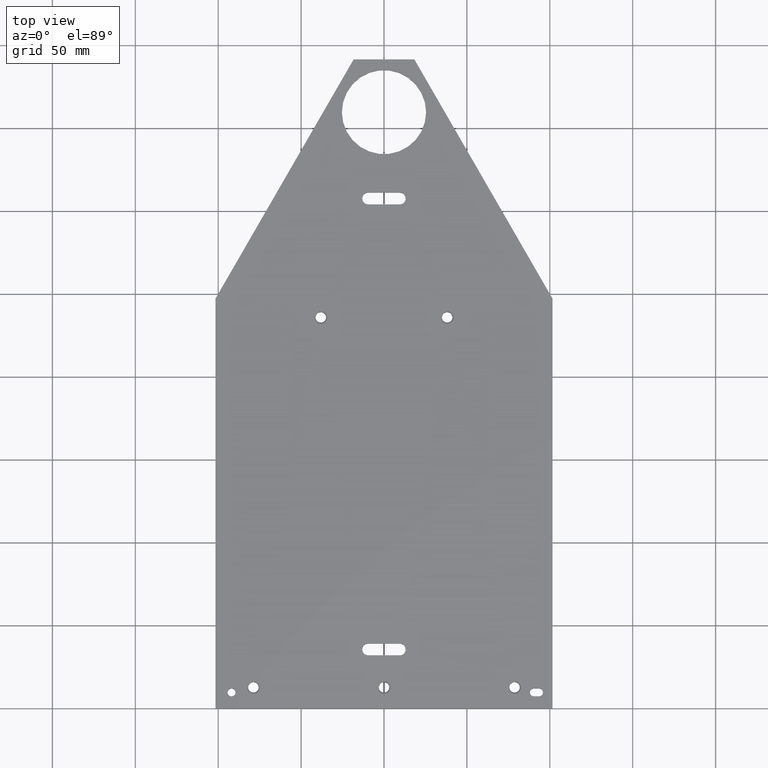
[diagram: clean part render]
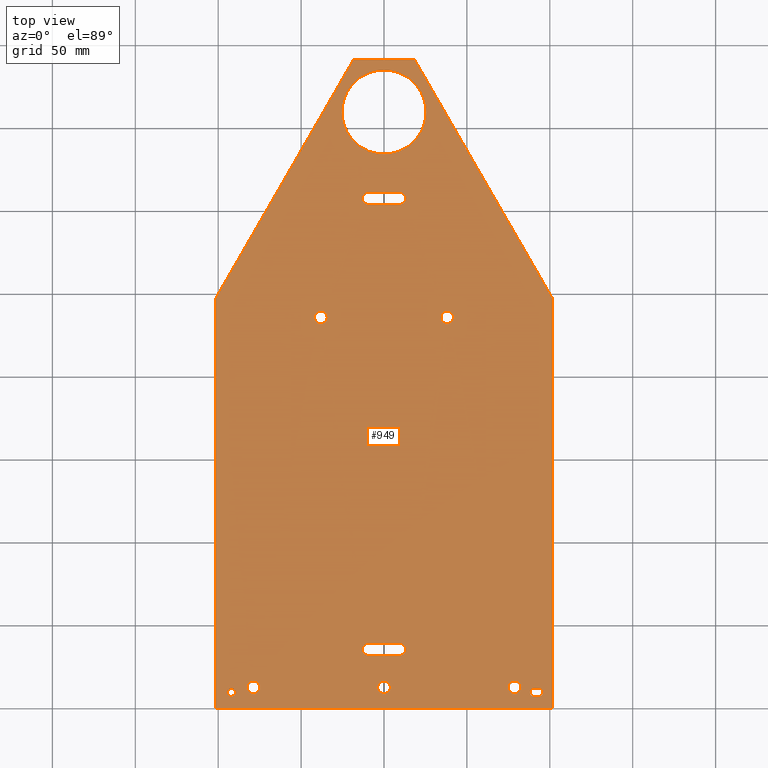
[diagram: same view with one face highlighted and labeled with its STEP entity id]
A machine part, top view. The second image highlights one B-rep face of the part: STEP entity #949.
In plain terms, the highlighted planar face has unit normal (0, 0, -1).
Its self-contained STEP definition (entity closure, byte-faithful):
#94 = CIRCLE ( 'NONE', #1489, 0.1499999999999997700 ) ;
#107 = CIRCLE ( 'NONE', #1493, 0.09399999999999959800 ) ;
#113 = CIRCLE ( 'NONE', #1495, 0.09400000000000013900 ) ;
#141 = CIRCLE ( 'NONE', #1507, 0.9999999999999990000 ) ;
#147 = CARTESIAN_POINT ( 'NONE',  ( -0.7216878364870401600, 15.41150000000001300, 0.1875000000000000300 ) ) ;
#148 = DIRECTION ( 'NONE',  ( 1.000000000000000000, 0.0000000000000000000, 0.0000000000000000000 ) ) ;
#149 = CARTESIAN_POINT ( 'NONE',  ( -1.499999999999999600, 9.286500000000010900, 0.1875000000000000800 ) ) ;
#150 = DIRECTION ( 'NONE',  ( -0.0000000000000000000, -0.0000000000000000000, 1.000000000000000000 ) ) ;
#151 = CARTESIAN_POINT ( 'NONE',  ( -0.7216878364870401600, 15.41150000000001300, 0.1875000000000000300 ) ) ;
#152 = DIRECTION ( 'NONE',  ( -0.4999999999999938400, 0.8660254037844422600, -0.0000000000000000000 ) ) ;
#153 = DIRECTION ( 'NONE',  ( -0.0000000000000000000, -0.0000000000000000000, 1.000000000000000000 ) ) ;
#154 = CARTESIAN_POINT ( 'NONE',  ( 0.7216878364870408200, 15.41150000000001300, 0.1875000000000000300 ) ) ;
#155 = DIRECTION ( 'NONE',  ( -0.4999999999999935100, -0.8660254037844422600, 0.0000000000000000000 ) ) ;
#156 = DIRECTION ( 'NONE',  ( -1.000000000000000000, -0.0000000000000000000, -0.0000000000000000000 ) ) ;
#157 = CARTESIAN_POINT ( 'NONE',  ( -4.000000000000003600, 0.0000000000000000000, 0.1875000000000000300 ) ) ;
#158 = CARTESIAN_POINT ( 'NONE',  ( 0.0000000000000000000, 14.16150000000001100, 0.1875000000000000300 ) ) ;
#159 = DIRECTION ( 'NONE',  ( 0.0000000000000000000, 0.0000000000000000000, 1.000000000000000000 ) ) ;
#160 = CARTESIAN_POINT ( 'NONE',  ( 3.560000000000000100, 0.4739999999999993700, 0.1875000000000000300 ) ) ;
#161 = DIRECTION ( 'NONE',  ( 1.000000000000000000, 0.0000000000000000000, 0.0000000000000000000 ) ) ;
#162 = DIRECTION ( 'NONE',  ( 1.000000000000000000, 1.365923996832129900E-016, 0.0000000000000000000 ) ) ;
#163 = DIRECTION ( 'NONE',  ( -2.245362950125366000E-016, 1.000000000000000000, -0.0000000000000000000 ) ) ;
#164 = CARTESIAN_POINT ( 'NONE',  ( 4.000000000000005300, 9.733296769724415000, 0.1875000000000000300 ) ) ;
#165 = CARTESIAN_POINT ( 'NONE',  ( -0.3750000000000023300, 12.11000000000006700, 0.1875000000000000300 ) ) ;
#166 = DIRECTION ( 'NONE',  ( 0.0000000000000000000, 0.0000000000000000000, 1.000000000000000000 ) ) ;
#167 = DIRECTION ( 'NONE',  ( 1.000000000000000000, 0.0000000000000000000, 0.0000000000000000000 ) ) ;
#168 = CARTESIAN_POINT ( 'NONE',  ( 0.3749999999999977200, 12.11000000000006700, 0.1875000000000000300 ) ) ;
#169 = CARTESIAN_POINT ( 'NONE',  ( 0.3750000000000036600, 1.540500000000067000, 0.1875000000000000300 ) ) ;
#170 = DIRECTION ( 'NONE',  ( 1.000000000000000000, 3.642463991552351500E-016, -0.0000000000000000000 ) ) ;
#171 = CARTESIAN_POINT ( 'NONE',  ( 0.3750000000000037700, 1.400000000000067000, 0.1875000000000000300 ) ) ;
#172 = CARTESIAN_POINT ( 'NONE',  ( 0.3750000000000036600, 1.259500000000067300, 0.1875000000000000300 ) ) ;
#173 = DIRECTION ( 'NONE',  ( 0.0000000000000000000, 0.0000000000000000000, 1.000000000000000000 ) ) ;
#174 = DIRECTION ( 'NONE',  ( -1.000000000000000000, 0.0000000000000000000, 0.0000000000000000000 ) ) ;
#175 = CARTESIAN_POINT ( 'NONE',  ( -4.000000000000003600, 0.0000000000000000000, 0.1875000000000000300 ) ) ;
#176 = CARTESIAN_POINT ( 'NONE',  ( -0.3749999999999962800, 1.400000000000067000, 0.1875000000000000300 ) ) ;
#177 = DIRECTION ( 'NONE',  ( 5.613407375313416200E-017, -1.000000000000000000, -0.0000000000000000000 ) ) ;
#178 = DIRECTION ( 'NONE',  ( 0.0000000000000000000, 0.0000000000000000000, 1.000000000000000000 ) ) ;
#179 = DIRECTION ( 'NONE',  ( -1.000000000000000000, 0.0000000000000000000, 0.0000000000000000000 ) ) ;
#180 = DIRECTION ( 'NONE',  ( -1.000000000000000000, 0.0000000000000000000, 0.0000000000000000000 ) ) ;
#181 = CARTESIAN_POINT ( 'NONE',  ( 0.3749999999999980600, 12.25050000000006600, 0.1875000000000000300 ) ) ;
#182 = DIRECTION ( 'NONE',  ( -0.0000000000000000000, -0.0000000000000000000, 1.000000000000000000 ) ) ;
#183 = CARTESIAN_POINT ( 'NONE',  ( 0.3749999999999980600, 11.96950000000006800, 0.1875000000000000300 ) ) ;
#184 = CARTESIAN_POINT ( 'NONE',  ( 1.500000000000000900, 9.286500000000010900, 0.1875000000000000800 ) ) ;
#185 = DIRECTION ( 'NONE',  ( 1.000000000000000000, 0.0000000000000000000, 0.0000000000000000000 ) ) ;
#186 = DIRECTION ( 'NONE',  ( 0.0000000000000000000, 0.0000000000000000000, 1.000000000000000000 ) ) ;
#187 = DIRECTION ( 'NONE',  ( 1.000000000000000000, 2.913971193241881200E-015, -0.0000000000000000000 ) ) ;
#188 = DIRECTION ( 'NONE',  ( -1.000000000000000000, 0.0000000000000000000, 0.0000000000000000000 ) ) ;
#189 = DIRECTION ( 'NONE',  ( 1.000000000000000000, 0.0000000000000000000, 0.0000000000000000000 ) ) ;
#191 = DIRECTION ( 'NONE',  ( -0.0000000000000000000, -0.0000000000000000000, 1.000000000000000000 ) ) ;
#193 = DIRECTION ( 'NONE',  ( 1.000000000000000000, 0.0000000000000000000, 0.0000000000000000000 ) ) ;
#201 = CARTESIAN_POINT ( 'NONE',  ( -3.620000000000005400, 0.3799999999999997800, 0.1875000000000000300 ) ) ;
#209 = CARTESIAN_POINT ( 'NONE',  ( -3.100000000000000100, 0.4999999999999930100, 0.1875000000000000800 ) ) ;
#223 = CARTESIAN_POINT ( 'NONE',  ( -3.714000000000005700, 0.3799999999999997800, 0.1875000000000000300 ) ) ;
#224 = CARTESIAN_POINT ( 'NONE',  ( 0.5155000000000037300, 1.400000000000067000, 0.1875000000000000300 ) ) ;
#229 = CARTESIAN_POINT ( 'NONE',  ( 3.680000000000002400, 0.2860000000000002000, 0.1875000000000000300 ) ) ;
#230 = CARTESIAN_POINT ( 'NONE',  ( 4.000000000000005300, 9.733296769724415000, 0.1875000000000000300 ) ) ;
#233 = CARTESIAN_POINT ( 'NONE',  ( -4.000000000000003600, 0.0000000000000000000, 0.1875000000000000300 ) ) ;
#240 = CARTESIAN_POINT ( 'NONE',  ( -0.3749999999999963900, 1.259500000000066900, 0.1875000000000000300 ) ) ;
#246 = CARTESIAN_POINT ( 'NONE',  ( -1.349999999999999400, 9.286500000000010900, 0.1875000000000000800 ) ) ;
#247 = CARTESIAN_POINT ( 'NONE',  ( 1.650000000000001000, 9.286500000000010900, 0.1875000000000000800 ) ) ;
#252 = CARTESIAN_POINT ( 'NONE',  ( -3.250000000000000000, 0.4999999999999930100, 0.1875000000000000800 ) ) ;
#256 = CARTESIAN_POINT ( 'NONE',  ( -2.950000000000000600, 0.4999999999999930100, 0.1875000000000000800 ) ) ;
#261 = CARTESIAN_POINT ( 'NONE',  ( 0.5154999999999969600, 12.11000000000006700, 0.1875000000000000300 ) ) ;
#262 = CARTESIAN_POINT ( 'NONE',  ( 3.774000000000001800, 0.3799999999999997800, 0.1875000000000000300 ) ) ;
#264 = DIRECTION ( 'NONE',  ( 1.000000000000000000, 0.0000000000000000000, 0.0000000000000000000 ) ) ;
#266 = CARTESIAN_POINT ( 'NONE',  ( -3.526000000000005600, 0.3799999999999997800, 0.1875000000000000300 ) ) ;
#269 = CARTESIAN_POINT ( 'NONE',  ( 3.560000000000000100, 0.2860000000000002000, 0.1875000000000000300 ) ) ;
#271 = CARTESIAN_POINT ( 'NONE',  ( 3.680000000000002400, 0.4739999999999993700, 0.1875000000000000300 ) ) ;
#272 = CARTESIAN_POINT ( 'NONE',  ( -0.7216878364870401600, 15.41150000000001300, 0.1875000000000000300 ) ) ;
#274 = CARTESIAN_POINT ( 'NONE',  ( 0.9999999999999990000, 14.16150000000001100, 0.1875000000000000300 ) ) ;
#275 = CARTESIAN_POINT ( 'NONE',  ( 0.3749999999999980600, 11.96950000000006800, 0.1875000000000000300 ) ) ;
#276 = CARTESIAN_POINT ( 'NONE',  ( -0.3749999999999963900, 1.540500000000067000, 0.1875000000000000300 ) ) ;
#278 = CARTESIAN_POINT ( 'NONE',  ( 3.560000000000000100, 0.4739999999999993700, 0.1875000000000000300 ) ) ;
#279 = CARTESIAN_POINT ( 'NONE',  ( -0.3750000000000020000, 12.25050000000006600, 0.1875000000000000300 ) ) ;
#281 = CARTESIAN_POINT ( 'NONE',  ( 0.7216878364870408200, 15.41150000000001300, 0.1875000000000000300 ) ) ;
#285 = CARTESIAN_POINT ( 'NONE',  ( 4.000000000000008000, 1.092739197465705300E-015, 0.1875000000000000300 ) ) ;
#287 = CARTESIAN_POINT ( 'NONE',  ( -0.9999999999999990000, 14.16150000000001100, 0.1875000000000000300 ) ) ;
#289 = CARTESIAN_POINT ( 'NONE',  ( 0.3750000000000036600, 1.259500000000067300, 0.1875000000000000300 ) ) ;
#293 = CARTESIAN_POINT ( 'NONE',  ( 0.3749999999999980600, 12.25050000000006600, 0.1875000000000000300 ) ) ;
#294 = CARTESIAN_POINT ( 'NONE',  ( 0.3750000000000036600, 1.540500000000067000, 0.1875000000000000300 ) ) ;
#296 = CARTESIAN_POINT ( 'NONE',  ( -0.3750000000000020000, 11.96950000000006600, 0.1875000000000000300 ) ) ;
#298 = CARTESIAN_POINT ( 'NONE',  ( 1.350000000000001000, 9.286500000000010900, 0.1875000000000000800 ) ) ;
#302 = CARTESIAN_POINT ( 'NONE',  ( -1.649999999999999700, 9.286500000000010900, 0.1875000000000000800 ) ) ;
#304 = CARTESIAN_POINT ( 'NONE',  ( -4.000000000000003600, 9.733296769724413300, 0.1875000000000000300 ) ) ;
#329 = CARTESIAN_POINT ( 'NONE',  ( 0.3750000000000037700, 1.400000000000067000, 0.1875000000000000300 ) ) ;
#330 = DIRECTION ( 'NONE',  ( 0.0000000000000000000, 0.0000000000000000000, 1.000000000000000000 ) ) ;
#331 = DIRECTION ( 'NONE',  ( -1.000000000000000000, 0.0000000000000000000, 0.0000000000000000000 ) ) ;
#340 = CARTESIAN_POINT ( 'NONE',  ( -2.731847993664263200E-016, 0.4999999999999930100, 0.1875000000000000800 ) ) ;
#341 = DIRECTION ( 'NONE',  ( -0.0000000000000000000, -0.0000000000000000000, 1.000000000000000000 ) ) ;
#342 = DIRECTION ( 'NONE',  ( 1.000000000000000000, 0.0000000000000000000, 0.0000000000000000000 ) ) ;
#358 = CARTESIAN_POINT ( 'NONE',  ( 3.099999999999999600, 0.4999999999999930100, 0.1875000000000000800 ) ) ;
#359 = DIRECTION ( 'NONE',  ( -0.0000000000000000000, -0.0000000000000000000, 1.000000000000000000 ) ) ;
#360 = DIRECTION ( 'NONE',  ( 1.000000000000000000, 0.0000000000000000000, 0.0000000000000000000 ) ) ;
#398 = CIRCLE ( 'NONE', #1509, 0.1499999999999997700 ) ;
#399 = CIRCLE ( 'NONE', #1508, 0.1499999999999999700 ) ;
#400 = LINE ( 'NONE', #181, #404 ) ;
#401 = CIRCLE ( 'NONE', #1511, 0.1404999999999992400 ) ;
#402 = CIRCLE ( 'NONE', #1510, 0.1500000000000000500 ) ;
#403 = LINE ( 'NONE', #183, #407 ) ;
#404 = VECTOR ( 'NONE', #180, 39.37007874015748100 ) ;
#405 = CIRCLE ( 'NONE', #1513, 0.1404999999999999000 ) ;
#406 = CIRCLE ( 'NONE', #1512, 0.1405000000000003200 ) ;
#407 = VECTOR ( 'NONE', #187, 39.37007874015748100 ) ;
#408 = LINE ( 'NONE', #169, #410 ) ;
#409 = LINE ( 'NONE', #172, #413 ) ;
#410 = VECTOR ( 'NONE', #188, 39.37007874015748100 ) ;
#411 = CIRCLE ( 'NONE', #1514, 0.1405000000000000400 ) ;
#412 = CIRCLE ( 'NONE', #1515, 0.9999999999999990000 ) ;
#413 = VECTOR ( 'NONE', #170, 39.37007874015748100 ) ;
#414 = LINE ( 'NONE', #157, #419 ) ;
#415 = LINE ( 'NONE', #175, #417 ) ;
#416 = CIRCLE ( 'NONE', #1517, 0.09400000000000013900 ) ;
#417 = VECTOR ( 'NONE', #177, 39.37007874015748100 ) ;
#418 = LINE ( 'NONE', #164, #421 ) ;
#419 = VECTOR ( 'NONE', #162, 39.37007874015748100 ) ;
#420 = LINE ( 'NONE', #154, #423 ) ;
#421 = VECTOR ( 'NONE', #163, 39.37007874015748100 ) ;
#422 = LINE ( 'NONE', #147, #425 ) ;
#423 = VECTOR ( 'NONE', #152, 39.37007874015748100 ) ;
#424 = LINE ( 'NONE', #151, #427 ) ;
#425 = VECTOR ( 'NONE', #156, 39.37007874015748100 ) ;
#426 = CIRCLE ( 'NONE', #1516, 0.1500000000000000500 ) ;
#427 = VECTOR ( 'NONE', #155, 39.37007874015748900 ) ;
#428 = LINE ( 'NONE', #1393, #431 ) ;
#430 = CIRCLE ( 'NONE', #1518, 0.09399999999999959800 ) ;
#431 = VECTOR ( 'NONE', #1391, 39.37007874015748100 ) ;
#432 = LINE ( 'NONE', #160, #434 ) ;
#433 = CIRCLE ( 'NONE', #1519, 0.09399999999999959800 ) ;
#434 = VECTOR ( 'NONE', #1396, 39.37007874015748100 ) ;
#435 = CIRCLE ( 'NONE', #1520, 0.1499999999999997700 ) ;
#470 = CIRCLE ( 'NONE', #910, 0.1500000000000000500 ) ;
#486 = CIRCLE ( 'NONE', #1546, 0.1500000000000000500 ) ;
#492 = CIRCLE ( 'NONE', #1550, 0.1404999999999992400 ) ;
#503 = CIRCLE ( 'NONE', #1552, 0.1404999999999999000 ) ;
#515 = CIRCLE ( 'NONE', #1554, 0.1499999999999999700 ) ;
#527 = CIRCLE ( 'NONE', #1557, 0.1499999999999997700 ) ;
#537 = DIRECTION ( 'NONE',  ( -0.0000000000000000000, -0.0000000000000000000, 1.000000000000000000 ) ) ;
#539 = VERTEX_POINT ( 'NONE', #1624 ) ;
#540 = VERTEX_POINT ( 'NONE', #1618 ) ;
#549 = VERTEX_POINT ( 'NONE', #1617 ) ;
#550 = VERTEX_POINT ( 'NONE', #1630 ) ;
#557 = VERTEX_POINT ( 'NONE', #252 ) ;
#558 = VERTEX_POINT ( 'NONE', #256 ) ;
#565 = VERTEX_POINT ( 'NONE', #262 ) ;
#566 = VERTEX_POINT ( 'NONE', #271 ) ;
#569 = VERTEX_POINT ( 'NONE', #223 ) ;
#570 = VERTEX_POINT ( 'NONE', #266 ) ;
#572 = CARTESIAN_POINT ( 'NONE',  ( -3.620000000000005400, 0.3799999999999997800, 0.1875000000000000300 ) ) ;
#575 = VERTEX_POINT ( 'NONE', #302 ) ;
#577 = VERTEX_POINT ( 'NONE', #246 ) ;
#585 = VERTEX_POINT ( 'NONE', #298 ) ;
#586 = VERTEX_POINT ( 'NONE', #247 ) ;
#588 = VERTEX_POINT ( 'NONE', #269 ) ;
#591 = VERTEX_POINT ( 'NONE', #304 ) ;
#597 = VERTEX_POINT ( 'NONE', #261 ) ;
#598 = VERTEX_POINT ( 'NONE', #293 ) ;
#601 = VERTEX_POINT ( 'NONE', #224 ) ;
#602 = VERTEX_POINT ( 'NONE', #294 ) ;
#603 = VERTEX_POINT ( 'NONE', #279 ) ;
#604 = VERTEX_POINT ( 'NONE', #275 ) ;
#605 = VERTEX_POINT ( 'NONE', #287 ) ;
#606 = VERTEX_POINT ( 'NONE', #274 ) ;
#607 = VERTEX_POINT ( 'NONE', #276 ) ;
#608 = VERTEX_POINT ( 'NONE', #296 ) ;
#609 = VERTEX_POINT ( 'NONE', #289 ) ;
#611 = VERTEX_POINT ( 'NONE', #240 ) ;
#612 = VERTEX_POINT ( 'NONE', #233 ) ;
#614 = VERTEX_POINT ( 'NONE', #229 ) ;
#615 = VERTEX_POINT ( 'NONE', #285 ) ;
#616 = VERTEX_POINT ( 'NONE', #230 ) ;
#617 = VERTEX_POINT ( 'NONE', #281 ) ;
#618 = VERTEX_POINT ( 'NONE', #272 ) ;
#619 = VERTEX_POINT ( 'NONE', #278 ) ;
#649 = FACE_BOUND ( 'NONE', #995, .T. ) ;
#655 = FACE_BOUND ( 'NONE', #767, .T. ) ;
#662 = FACE_BOUND ( 'NONE', #1045, .T. ) ;
#664 = FACE_BOUND ( 'NONE', #1004, .T. ) ;
#666 = FACE_BOUND ( 'NONE', #771, .T. ) ;
#667 = FACE_BOUND ( 'NONE', #765, .T. ) ;
#668 = FACE_OUTER_BOUND ( 'NONE', #766, .T. ) ;
#669 = FACE_BOUND ( 'NONE', #764, .T. ) ;
#670 = FACE_BOUND ( 'NONE', #768, .T. ) ;
#671 = FACE_BOUND ( 'NONE', #1046, .T. ) ;
#672 = FACE_BOUND ( 'NONE', #1028, .T. ) ;
#758 = ORIENTED_EDGE ( 'NONE', *, *, #1284, .F. ) ;
#759 = ORIENTED_EDGE ( 'NONE', *, *, #1283, .F. ) ;
#764 = EDGE_LOOP ( 'NONE', ( #1465, #1471 ) ) ;
#765 = EDGE_LOOP ( 'NONE', ( #758, #1455 ) ) ;
#766 = EDGE_LOOP ( 'NONE', ( #1460, #1464, #1458, #1459, #1469, #1462 ) ) ;
#767 = EDGE_LOOP ( 'NONE', ( #921, #933 ) ) ;
#768 = EDGE_LOOP ( 'NONE', ( #1457, #1113 ) ) ;
#771 = EDGE_LOOP ( 'NONE', ( #919, #914 ) ) ;
#877 = AXIS2_PLACEMENT_3D ( 'NONE', #1315, #1333, #1317 ) ;
#910 = AXIS2_PLACEMENT_3D ( 'NONE', #1706, #1707, #1708 ) ;
#913 = ORIENTED_EDGE ( 'NONE', *, *, #1273, .F. ) ;
#914 = ORIENTED_EDGE ( 'NONE', *, *, #1812, .F. ) ;
#918 = ORIENTED_EDGE ( 'NONE', *, *, #1276, .F. ) ;
#919 = ORIENTED_EDGE ( 'NONE', *, *, #1274, .F. ) ;
#921 = ORIENTED_EDGE ( 'NONE', *, *, #1275, .F. ) ;
#922 = ORIENTED_EDGE ( 'NONE', *, *, #1282, .F. ) ;
#923 = ORIENTED_EDGE ( 'NONE', *, *, #1279, .F. ) ;
#926 = ORIENTED_EDGE ( 'NONE', *, *, #1804, .F. ) ;
#927 = ORIENTED_EDGE ( 'NONE', *, *, #1277, .F. ) ;
#929 = ORIENTED_EDGE ( 'NONE', *, *, #1278, .F. ) ;
#930 = ORIENTED_EDGE ( 'NONE', *, *, #1796, .F. ) ;
#933 = ORIENTED_EDGE ( 'NONE', *, *, #1786, .F. ) ;
#935 = ORIENTED_EDGE ( 'NONE', *, *, #1281, .F. ) ;
#949 = ADVANCED_FACE ( 'NONE', ( #662, #666, #655, #649, #664, #667, #668, #669, #670, #671, #672 ), #1334, .F. ) ;
#988 = CARTESIAN_POINT ( 'NONE',  ( 3.099999999999999600, 0.4999999999999930100, 0.1875000000000000800 ) ) ;
#995 = EDGE_LOOP ( 'NONE', ( #918, #930, #927, #929, #923 ) ) ;
#1004 = EDGE_LOOP ( 'NONE', ( #1200, #1174, #935, #922, #759 ) ) ;
#1028 = EDGE_LOOP ( 'NONE', ( #1095, #1096 ) ) ;
#1045 = EDGE_LOOP ( 'NONE', ( #913, #926 ) ) ;
#1046 = EDGE_LOOP ( 'NONE', ( #1102, #1103, #1101, #1097, #1106 ) ) ;
#1095 = ORIENTED_EDGE ( 'NONE', *, *, #1297, .F. ) ;
#1096 = ORIENTED_EDGE ( 'NONE', *, *, #1238, .F. ) ;
#1097 = ORIENTED_EDGE ( 'NONE', *, *, #1248, .F. ) ;
#1101 = ORIENTED_EDGE ( 'NONE', *, *, #1295, .F. ) ;
#1102 = ORIENTED_EDGE ( 'NONE', *, *, #1293, .F. ) ;
#1103 = ORIENTED_EDGE ( 'NONE', *, *, #1294, .F. ) ;
#1106 = ORIENTED_EDGE ( 'NONE', *, *, #1296, .F. ) ;
#1113 = ORIENTED_EDGE ( 'NONE', *, *, #1252, .F. ) ;
#1174 = ORIENTED_EDGE ( 'NONE', *, *, #1800, .F. ) ;
#1200 = ORIENTED_EDGE ( 'NONE', *, *, #1280, .F. ) ;
#1238 = EDGE_CURVE ( 'NONE', #557, #558, #94, .T. ) ;
#1248 = EDGE_CURVE ( 'NONE', #565, #566, #107, .T. ) ;
#1252 = EDGE_CURVE ( 'NONE', #569, #570, #113, .T. ) ;
#1271 = EDGE_CURVE ( 'NONE', #605, #606, #141, .T. ) ;
#1273 = EDGE_CURVE ( 'NONE', #539, #540, #399, .T. ) ;
#1274 = EDGE_CURVE ( 'NONE', #550, #549, #398, .T. ) ;
#1275 = EDGE_CURVE ( 'NONE', #586, #585, #402, .T. ) ;
#1276 = EDGE_CURVE ( 'NONE', #598, #603, #400, .T. ) ;
#1277 = EDGE_CURVE ( 'NONE', #604, #597, #401, .T. ) ;
#1278 = EDGE_CURVE ( 'NONE', #608, #604, #403, .T. ) ;
#1279 = EDGE_CURVE ( 'NONE', #603, #608, #406, .T. ) ;
#1280 = EDGE_CURVE ( 'NONE', #602, #607, #408, .T. ) ;
#1281 = EDGE_CURVE ( 'NONE', #609, #601, #405, .T. ) ;
#1282 = EDGE_CURVE ( 'NONE', #611, #609, #409, .T. ) ;
#1283 = EDGE_CURVE ( 'NONE', #607, #611, #411, .T. ) ;
#1284 = EDGE_CURVE ( 'NONE', #606, #605, #412, .T. ) ;
#1285 = EDGE_CURVE ( 'NONE', #591, #612, #415, .T. ) ;
#1286 = EDGE_CURVE ( 'NONE', #612, #615, #414, .T. ) ;
#1287 = EDGE_CURVE ( 'NONE', #615, #616, #418, .T. ) ;
#1288 = EDGE_CURVE ( 'NONE', #616, #617, #420, .T. ) ;
#1289 = EDGE_CURVE ( 'NONE', #617, #618, #422, .T. ) ;
#1290 = EDGE_CURVE ( 'NONE', #618, #591, #424, .T. ) ;
#1291 = EDGE_CURVE ( 'NONE', #577, #575, #426, .T. ) ;
#1292 = EDGE_CURVE ( 'NONE', #570, #569, #416, .T. ) ;
#1293 = EDGE_CURVE ( 'NONE', #588, #614, #428, .T. ) ;
#1294 = EDGE_CURVE ( 'NONE', #619, #588, #430, .T. ) ;
#1295 = EDGE_CURVE ( 'NONE', #566, #619, #432, .T. ) ;
#1296 = EDGE_CURVE ( 'NONE', #614, #565, #433, .T. ) ;
#1297 = EDGE_CURVE ( 'NONE', #558, #557, #435, .T. ) ;
#1315 = CARTESIAN_POINT ( 'NONE',  ( 0.0000000000000000000, 0.0000000000000000000, 0.1875000000000000300 ) ) ;
#1317 = DIRECTION ( 'NONE',  ( -1.000000000000000000, 0.0000000000000000000, -0.0000000000000000000 ) ) ;
#1333 = DIRECTION ( 'NONE',  ( 0.0000000000000000000, 0.0000000000000000000, -1.000000000000000000 ) ) ;
#1334 = PLANE ( 'NONE',  #877 ) ;
#1348 = DIRECTION ( 'NONE',  ( 1.000000000000000000, 0.0000000000000000000, 0.0000000000000000000 ) ) ;
#1391 = DIRECTION ( 'NONE',  ( 1.000000000000000000, 2.845674993400227100E-016, 0.0000000000000000000 ) ) ;
#1392 = DIRECTION ( 'NONE',  ( 1.000000000000000000, 0.0000000000000000000, 0.0000000000000000000 ) ) ;
#1393 = CARTESIAN_POINT ( 'NONE',  ( 3.560000000000000100, 0.2860000000000002000, 0.1875000000000000300 ) ) ;
#1395 = CARTESIAN_POINT ( 'NONE',  ( 3.680000000000002400, 0.3799999999999997800, 0.1875000000000000300 ) ) ;
#1396 = DIRECTION ( 'NONE',  ( -1.000000000000000000, -0.0000000000000000000, -0.0000000000000000000 ) ) ;
#1398 = DIRECTION ( 'NONE',  ( -0.0000000000000000000, -0.0000000000000000000, 1.000000000000000000 ) ) ;
#1400 = DIRECTION ( 'NONE',  ( 0.0000000000000000000, 0.0000000000000000000, 1.000000000000000000 ) ) ;
#1401 = DIRECTION ( 'NONE',  ( 1.000000000000000000, 0.0000000000000000000, 0.0000000000000000000 ) ) ;
#1402 = CARTESIAN_POINT ( 'NONE',  ( -3.100000000000000100, 0.4999999999999930100, 0.1875000000000000800 ) ) ;
#1403 = DIRECTION ( 'NONE',  ( 0.0000000000000000000, 0.0000000000000000000, 1.000000000000000000 ) ) ;
#1404 = DIRECTION ( 'NONE',  ( 1.000000000000000000, 0.0000000000000000000, 0.0000000000000000000 ) ) ;
#1405 = CARTESIAN_POINT ( 'NONE',  ( 3.560000000000000100, 0.3799999999999997800, 0.1875000000000000300 ) ) ;
#1431 = DIRECTION ( 'NONE',  ( -0.0000000000000000000, -0.0000000000000000000, 1.000000000000000000 ) ) ;
#1435 = CARTESIAN_POINT ( 'NONE',  ( 3.680000000000002400, 0.3799999999999997800, 0.1875000000000000300 ) ) ;
#1438 = DIRECTION ( 'NONE',  ( 0.0000000000000000000, 0.0000000000000000000, 1.000000000000000000 ) ) ;
#1445 = DIRECTION ( 'NONE',  ( 1.000000000000000000, 0.0000000000000000000, 0.0000000000000000000 ) ) ;
#1450 = DIRECTION ( 'NONE',  ( 1.000000000000000000, 0.0000000000000000000, 0.0000000000000000000 ) ) ;
#1455 = ORIENTED_EDGE ( 'NONE', *, *, #1271, .F. ) ;
#1457 = ORIENTED_EDGE ( 'NONE', *, *, #1292, .F. ) ;
#1458 = ORIENTED_EDGE ( 'NONE', *, *, #1287, .T. ) ;
#1459 = ORIENTED_EDGE ( 'NONE', *, *, #1288, .T. ) ;
#1460 = ORIENTED_EDGE ( 'NONE', *, *, #1285, .T. ) ;
#1462 = ORIENTED_EDGE ( 'NONE', *, *, #1290, .T. ) ;
#1464 = ORIENTED_EDGE ( 'NONE', *, *, #1286, .T. ) ;
#1465 = ORIENTED_EDGE ( 'NONE', *, *, #1291, .F. ) ;
#1469 = ORIENTED_EDGE ( 'NONE', *, *, #1289, .T. ) ;
#1471 = ORIENTED_EDGE ( 'NONE', *, *, #1776, .F. ) ;
#1489 = AXIS2_PLACEMENT_3D ( 'NONE', #209, #1431, #1445 ) ;
#1493 = AXIS2_PLACEMENT_3D ( 'NONE', #1435, #1438, #1450 ) ;
#1495 = AXIS2_PLACEMENT_3D ( 'NONE', #201, #191, #193 ) ;
#1507 = AXIS2_PLACEMENT_3D ( 'NONE', #1611, #1610, #1608 ) ;
#1508 = AXIS2_PLACEMENT_3D ( 'NONE', #1615, #1614, #1616 ) ;
#1509 = AXIS2_PLACEMENT_3D ( 'NONE', #988, #537, #264 ) ;
#1510 = AXIS2_PLACEMENT_3D ( 'NONE', #184, #182, #189 ) ;
#1511 = AXIS2_PLACEMENT_3D ( 'NONE', #168, #186, #185 ) ;
#1512 = AXIS2_PLACEMENT_3D ( 'NONE', #165, #166, #167 ) ;
#1513 = AXIS2_PLACEMENT_3D ( 'NONE', #171, #173, #174 ) ;
#1514 = AXIS2_PLACEMENT_3D ( 'NONE', #176, #178, #179 ) ;
#1515 = AXIS2_PLACEMENT_3D ( 'NONE', #158, #159, #161 ) ;
#1516 = AXIS2_PLACEMENT_3D ( 'NONE', #149, #150, #148 ) ;
#1517 = AXIS2_PLACEMENT_3D ( 'NONE', #572, #1398, #1392 ) ;
#1518 = AXIS2_PLACEMENT_3D ( 'NONE', #1405, #1403, #1401 ) ;
#1519 = AXIS2_PLACEMENT_3D ( 'NONE', #1395, #1400, #1404 ) ;
#1520 = AXIS2_PLACEMENT_3D ( 'NONE', #1402, #153, #1348 ) ;
#1546 = AXIS2_PLACEMENT_3D ( 'NONE', #1730, #1731, #1732 ) ;
#1550 = AXIS2_PLACEMENT_3D ( 'NONE', #1755, #1756, #1757 ) ;
#1552 = AXIS2_PLACEMENT_3D ( 'NONE', #329, #330, #331 ) ;
#1554 = AXIS2_PLACEMENT_3D ( 'NONE', #340, #341, #342 ) ;
#1557 = AXIS2_PLACEMENT_3D ( 'NONE', #358, #359, #360 ) ;
#1608 = DIRECTION ( 'NONE',  ( 1.000000000000000000, 0.0000000000000000000, 0.0000000000000000000 ) ) ;
#1610 = DIRECTION ( 'NONE',  ( 0.0000000000000000000, 0.0000000000000000000, 1.000000000000000000 ) ) ;
#1611 = CARTESIAN_POINT ( 'NONE',  ( 0.0000000000000000000, 14.16150000000001100, 0.1875000000000000300 ) ) ;
#1614 = DIRECTION ( 'NONE',  ( -0.0000000000000000000, -0.0000000000000000000, 1.000000000000000000 ) ) ;
#1615 = CARTESIAN_POINT ( 'NONE',  ( -2.731847993664263200E-016, 0.4999999999999930100, 0.1875000000000000800 ) ) ;
#1616 = DIRECTION ( 'NONE',  ( 1.000000000000000000, 0.0000000000000000000, 0.0000000000000000000 ) ) ;
#1617 = CARTESIAN_POINT ( 'NONE',  ( 2.949999999999999700, 0.4999999999999930100, 0.1875000000000000800 ) ) ;
#1618 = CARTESIAN_POINT ( 'NONE',  ( -0.1500000000000002400, 0.4999999999999930100, 0.1875000000000000800 ) ) ;
#1624 = CARTESIAN_POINT ( 'NONE',  ( 0.1499999999999996900, 0.4999999999999930100, 0.1875000000000000800 ) ) ;
#1630 = CARTESIAN_POINT ( 'NONE',  ( 3.249999999999999600, 0.4999999999999930100, 0.1875000000000000800 ) ) ;
#1706 = CARTESIAN_POINT ( 'NONE',  ( -1.499999999999999600, 9.286500000000010900, 0.1875000000000000800 ) ) ;
#1707 = DIRECTION ( 'NONE',  ( -0.0000000000000000000, -0.0000000000000000000, 1.000000000000000000 ) ) ;
#1708 = DIRECTION ( 'NONE',  ( 1.000000000000000000, 0.0000000000000000000, 0.0000000000000000000 ) ) ;
#1730 = CARTESIAN_POINT ( 'NONE',  ( 1.500000000000000900, 9.286500000000010900, 0.1875000000000000800 ) ) ;
#1731 = DIRECTION ( 'NONE',  ( -0.0000000000000000000, -0.0000000000000000000, 1.000000000000000000 ) ) ;
#1732 = DIRECTION ( 'NONE',  ( 1.000000000000000000, 0.0000000000000000000, 0.0000000000000000000 ) ) ;
#1755 = CARTESIAN_POINT ( 'NONE',  ( 0.3749999999999977200, 12.11000000000006700, 0.1875000000000000300 ) ) ;
#1756 = DIRECTION ( 'NONE',  ( 0.0000000000000000000, 0.0000000000000000000, 1.000000000000000000 ) ) ;
#1757 = DIRECTION ( 'NONE',  ( 1.000000000000000000, 0.0000000000000000000, 0.0000000000000000000 ) ) ;
#1776 = EDGE_CURVE ( 'NONE', #575, #577, #470, .T. ) ;
#1786 = EDGE_CURVE ( 'NONE', #585, #586, #486, .T. ) ;
#1796 = EDGE_CURVE ( 'NONE', #597, #598, #492, .T. ) ;
#1800 = EDGE_CURVE ( 'NONE', #601, #602, #503, .T. ) ;
#1804 = EDGE_CURVE ( 'NONE', #540, #539, #515, .T. ) ;
#1812 = EDGE_CURVE ( 'NONE', #549, #550, #527, .T. ) ;